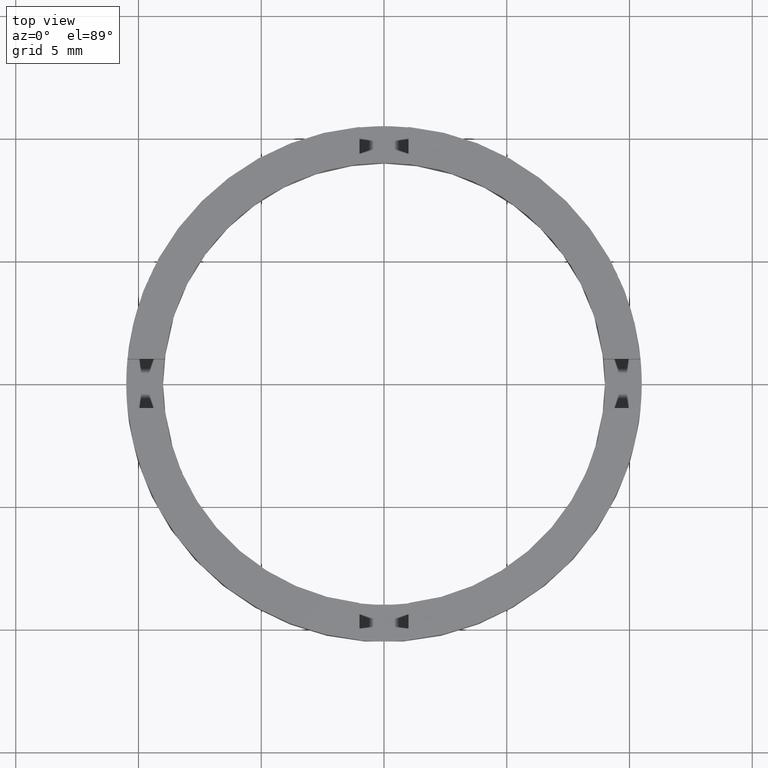
[diagram: clean part render]
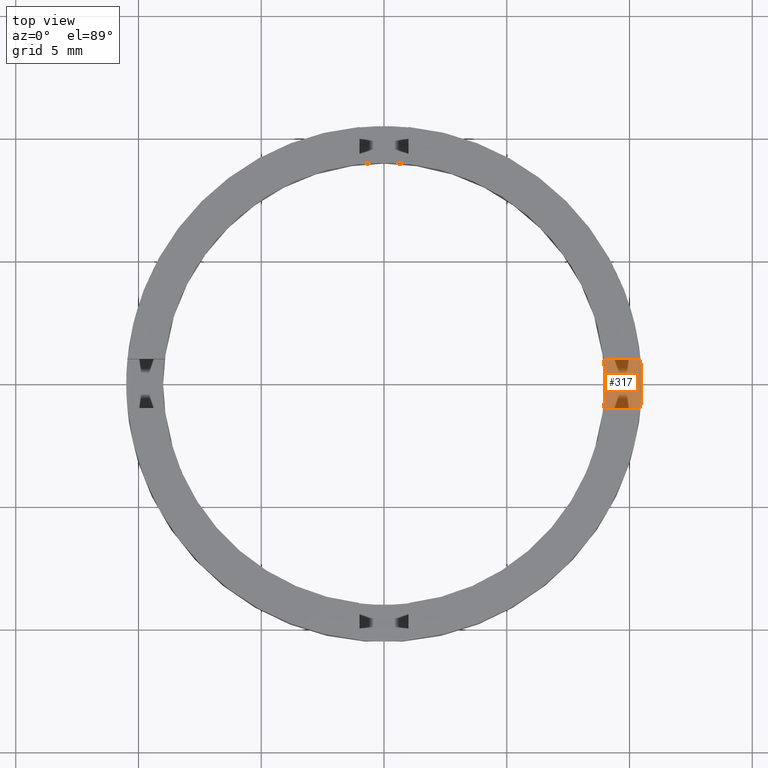
[diagram: same view with one face highlighted and labeled with its STEP entity id]
A machine part, top view. The second image highlights one B-rep face of the part: STEP entity #317.
In plain terms, the highlighted planar face has unit normal (-0, 0, 1).
Its self-contained STEP definition (entity closure, byte-faithful):
#1 = CIRCLE ( 'NONE', #500, 10.50000000000000178 ) ;
#13 = DIRECTION ( 'NONE',  ( 1.000000000000000000, 0.000000000000000000, 0.000000000000000000 ) ) ;
#23 = DIRECTION ( 'NONE',  ( 1.000000000000000000, 0.000000000000000000, 0.000000000000000000 ) ) ;
#26 = CARTESIAN_POINT ( 'NONE',  ( 8.999999999999998224, 1.102182119232617517E-15, 1.500000000000000000 ) ) ;
#30 = DIRECTION ( 'NONE',  ( 1.000000000000000000, 0.000000000000000000, 0.000000000000000000 ) ) ;
#57 = EDGE_CURVE ( 'NONE', #436, #412, #346, .T. ) ;
#87 = CARTESIAN_POINT ( 'NONE',  ( 0.000000000000000000, 0.000000000000000000, 1.500000000000000000 ) ) ;
#92 = CARTESIAN_POINT ( 'NONE',  ( 3.500000000000004441, 1.000000000000039302, 1.500000000000000000 ) ) ;
#113 = ORIENTED_EDGE ( 'NONE', *, *, #416, .F. ) ;
#131 = EDGE_LOOP ( 'NONE', ( #660, #672, #466, #113, #424, #670 ) ) ;
#178 = CARTESIAN_POINT ( 'NONE',  ( 10.50000000000000178, 1.285879139104721028E-15, 1.500000000000000000 ) ) ;
#192 = AXIS2_PLACEMENT_3D ( 'NONE', #87, #398, #619 ) ;
#211 = EDGE_CURVE ( 'NONE', #436, #382, #591, .T. ) ;
#246 = CARTESIAN_POINT ( 'NONE',  ( 0.000000000000000000, 0.000000000000000000, 1.500000000000000000 ) ) ;
#258 = FACE_OUTER_BOUND ( 'NONE', #131, .T. ) ;
#272 = DIRECTION ( 'NONE',  ( -0.000000000000000000, 0.000000000000000000, 1.000000000000000000 ) ) ;
#277 = DIRECTION ( 'NONE',  ( -0.000000000000000000, 0.000000000000000000, 1.000000000000000000 ) ) ;
#294 = PLANE ( 'NONE',  #192 ) ;
#301 = DIRECTION ( 'NONE',  ( -0.000000000000000000, 0.000000000000000000, 1.000000000000000000 ) ) ;
#317 = ADVANCED_FACE ( 'NONE', ( #258 ), #294, .T. ) ;
#346 = LINE ( 'NONE', #381, #596 ) ;
#347 = AXIS2_PLACEMENT_3D ( 'NONE', #246, #301, #13 ) ;
#352 = DIRECTION ( 'NONE',  ( -0.000000000000000000, 0.000000000000000000, 1.000000000000000000 ) ) ;
#359 = EDGE_CURVE ( 'NONE', #444, #377, #1, .T. ) ;
#377 = VERTEX_POINT ( 'NONE', #742 ) ;
#381 = CARTESIAN_POINT ( 'NONE',  ( 3.500000000000004441, -0.9999999999999608091, 1.500000000000000000 ) ) ;
#382 = VERTEX_POINT ( 'NONE', #26 ) ;
#387 = VERTEX_POINT ( 'NONE', #501 ) ;
#391 = DIRECTION ( 'NONE',  ( 1.000000000000000000, -2.849902853390471142E-14, 0.000000000000000000 ) ) ;
#398 = DIRECTION ( 'NONE',  ( -0.000000000000000000, 0.000000000000000000, 1.000000000000000000 ) ) ;
#412 = VERTEX_POINT ( 'NONE', #729 ) ;
#416 = EDGE_CURVE ( 'NONE', #382, #387, #498, .T. ) ;
#420 = DIRECTION ( 'NONE',  ( 1.000000000000000000, 0.000000000000000000, 0.000000000000000000 ) ) ;
#424 = ORIENTED_EDGE ( 'NONE', *, *, #211, .F. ) ;
#432 = CARTESIAN_POINT ( 'NONE',  ( 0.000000000000000000, 0.000000000000000000, 1.500000000000000000 ) ) ;
#435 = CARTESIAN_POINT ( 'NONE',  ( 0.000000000000000000, 0.000000000000000000, 1.500000000000000000 ) ) ;
#436 = VERTEX_POINT ( 'NONE', #709 ) ;
#444 = VERTEX_POINT ( 'NONE', #178 ) ;
#466 = ORIENTED_EDGE ( 'NONE', *, *, #600, .T. ) ;
#498 = CIRCLE ( 'NONE', #347, 8.999999999999998224 ) ;
#500 = AXIS2_PLACEMENT_3D ( 'NONE', #435, #272, #23 ) ;
#501 = CARTESIAN_POINT ( 'NONE',  ( 8.944271909999168102, 0.9999999999998839817, 1.500000000000000000 ) ) ;
#503 = LINE ( 'NONE', #92, #511 ) ;
#511 = VECTOR ( 'NONE', #589, 1000.000000000000000 ) ;
#535 = CIRCLE ( 'NONE', #590, 10.50000000000000178 ) ;
#589 = DIRECTION ( 'NONE',  ( -1.000000000000000000, 2.849902853390471142E-14, -0.000000000000000000 ) ) ;
#590 = AXIS2_PLACEMENT_3D ( 'NONE', #723, #352, #420 ) ;
#591 = CIRCLE ( 'NONE', #751, 8.999999999999998224 ) ;
#596 = VECTOR ( 'NONE', #391, 1000.000000000000000 ) ;
#600 = EDGE_CURVE ( 'NONE', #377, #387, #503, .T. ) ;
#619 = DIRECTION ( 'NONE',  ( 1.000000000000000000, 0.000000000000000000, 0.000000000000000000 ) ) ;
#660 = ORIENTED_EDGE ( 'NONE', *, *, #677, .T. ) ;
#670 = ORIENTED_EDGE ( 'NONE', *, *, #57, .T. ) ;
#672 = ORIENTED_EDGE ( 'NONE', *, *, #359, .T. ) ;
#677 = EDGE_CURVE ( 'NONE', #412, #444, #535, .T. ) ;
#709 = CARTESIAN_POINT ( 'NONE',  ( 8.944271909999143233, -1.000000000000116129, 1.500000000000000000 ) ) ;
#723 = CARTESIAN_POINT ( 'NONE',  ( 0.000000000000000000, 0.000000000000000000, 1.500000000000000000 ) ) ;
#729 = CARTESIAN_POINT ( 'NONE',  ( 10.45227248018342436, -1.000000000000158984, 1.500000000000000000 ) ) ;
#742 = CARTESIAN_POINT ( 'NONE',  ( 10.45227248018345279, 0.9999999999998411271, 1.500000000000000000 ) ) ;
#751 = AXIS2_PLACEMENT_3D ( 'NONE', #432, #277, #30 ) ;